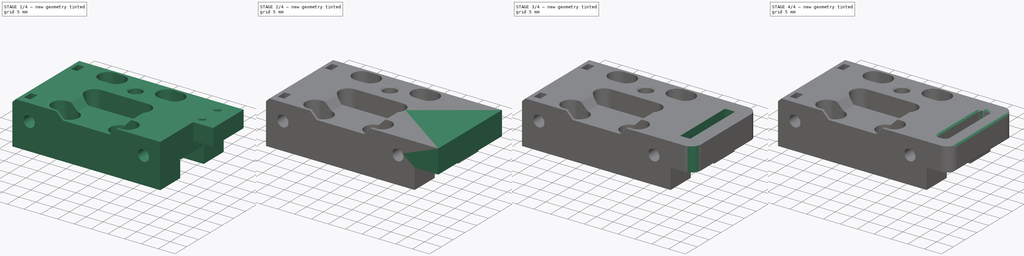
[diagram: build sequence overview — one tinted view per stage of 4, left to right]
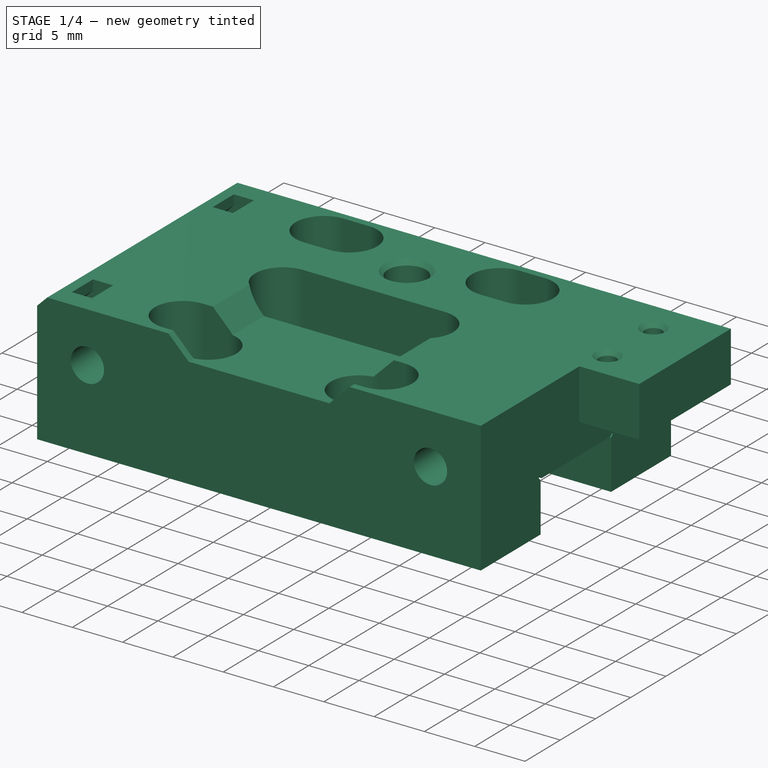
[diagram: stage 1 of 4 — iso view after this stage's code; geometry added in this stage tinted green]
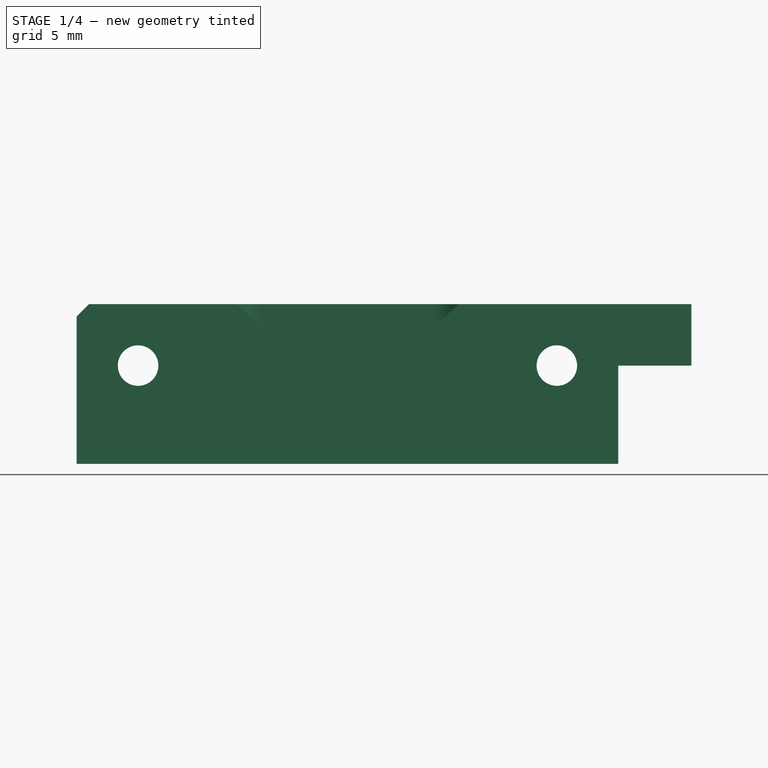
[diagram: stage 1 of 4 — front view after this stage's code; geometry added in this stage tinted green]
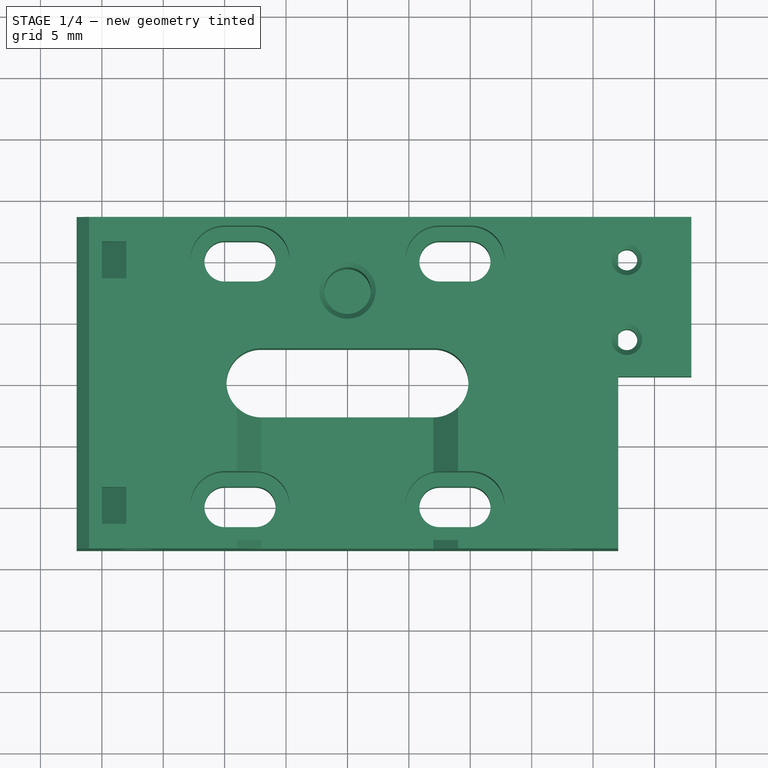
[diagram: stage 1 of 4 — top view after this stage's code; geometry added in this stage tinted green]
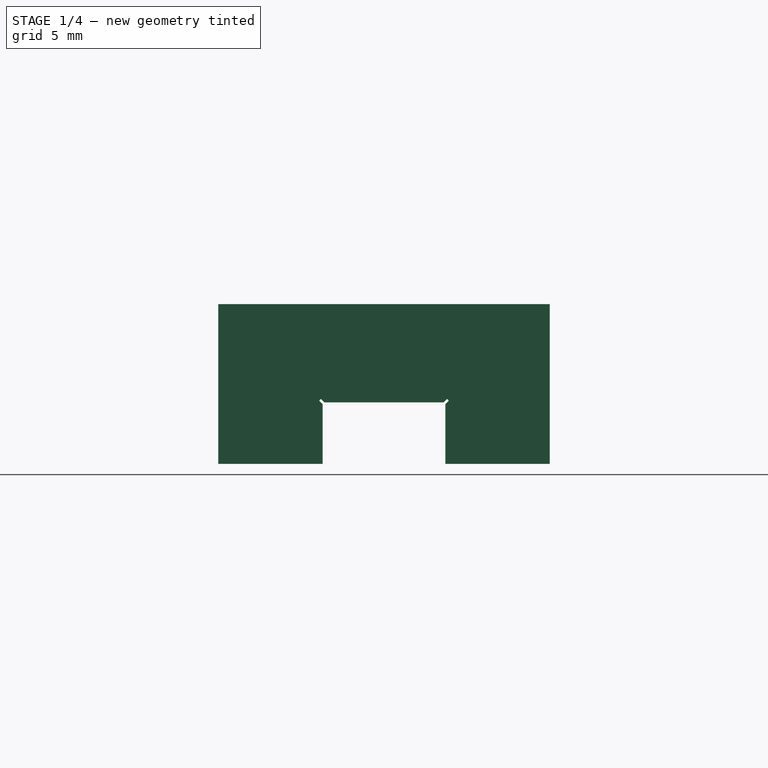
[diagram: stage 1 of 4 — right view after this stage's code; geometry added in this stage tinted green]
FCSTD DOCUMENT  (FreeCAD 0.19R24291 (Git))
Label: top-plate-2020-sensorless-endstop
License: All rights reserved
LicenseURL: http://en.wikipedia.org/wiki/All_rights_reserved
objects: Sketcher::SketchObject×6, PartDesign::Pocket×4, PartDesign::Pad×3, Part::Feature×2, PartDesign::Fillet×2, PartDesign::FeatureBase×1, PartDesign::Chamfer×1, PartDesign::Body×1
note: 30 computed .brp shape members not serialized (recipe doc carries the construction recipe); baked Part::Feature solids carry a one-line shape summary decoded from their .brp

FEATURE [Part::Feature] Body001002004  label="top-plate-with-endstop"
  Placement = pos=(0,0,0) rot=(0,0,1;3.14159rad)
  shape: bbox 50.05 x 27 x 15.5 mm, 97 faces (baked)
FEATURE [Part::Feature] Defeatured
  shape: bbox 50.05 x 27 x 15.5 mm, 96 faces (baked)
FEATURE [PartDesign::FeatureBase] BaseFeature
  BaseFeature = -> Defeatured
FEATURE [PartDesign::Pad] Pad
  BaseFeature = -> BaseFeature
  Direction = (1,1,1)
  Length = 2.5
  Length2 = 100
  Profile = -> BaseFeature [Face48,Face63,Face68,Face72]
  Type = 0
FEATURE [Sketcher::SketchObject] Sketch
  ExternalGeometry = -> [Pad]
  FullyConstrained = true
  MapMode = 5
  Placement = pos=(1.4e-15,-13.5,8e-16) rot=(1,0,0;1.5708rad)
  Support = -> [Pad]
  sketch-geometry (4):
    g0: LineSegment StartX=-22.05 StartY=33 StartZ=0 EndX=22.05 EndY=33 EndZ=0
    g1: LineSegment StartX=22.05 StartY=33 StartZ=0 EndX=22.05 EndY=30.5 EndZ=0
    g2: LineSegment StartX=22.05 StartY=30.5 StartZ=0 EndX=-22.05 EndY=30.5 EndZ=0
    g3: LineSegment StartX=-22.05 StartY=30.5 StartZ=0 EndX=-22.05 EndY=33 EndZ=0
  constraints (12):
    c: Coincident(g0,g1)
    c: Coincident(g1,g2)
    c: Coincident(g2,g3)
    c: Coincident(g3,g0)
    c: Horizontal(g0)
    c: Horizontal(g2)
    c: Vertical(g1)
    c: Vertical(g3)
    c: PointOnObject(g0,g-3)
    c: Vertical(g1,g-4)
    c: Horizontal(g-5,g1)
    c: DistanceY(g3,g3) = 2.5
FEATURE [PartDesign::Pocket] Pocket
  BaseFeature = -> Pad
  Length = 5
  Length2 = 100
  Profile = -> Sketch
  Type = 1
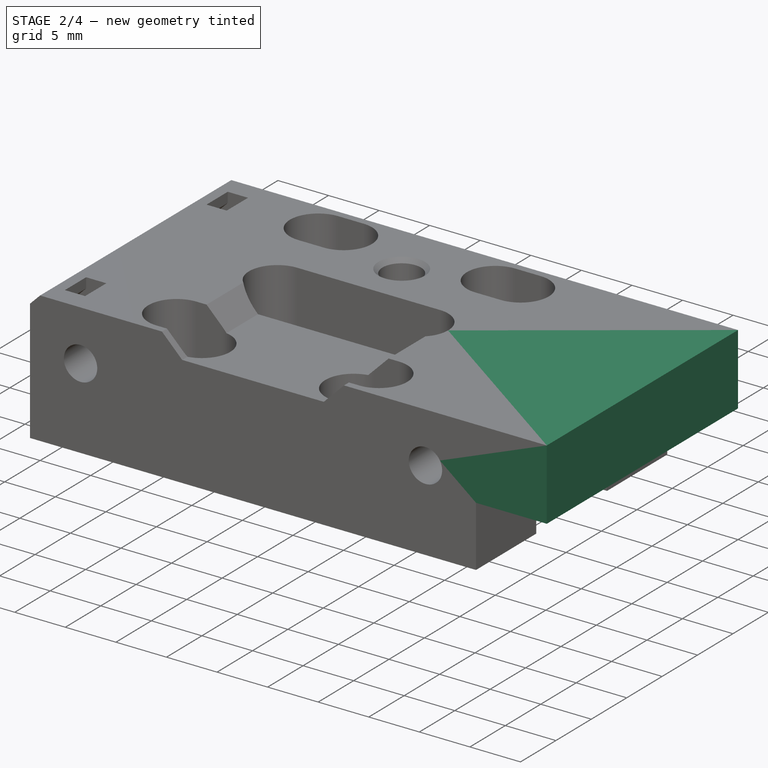
[diagram: stage 2 of 4 — iso view after this stage's code; geometry added in this stage tinted green]
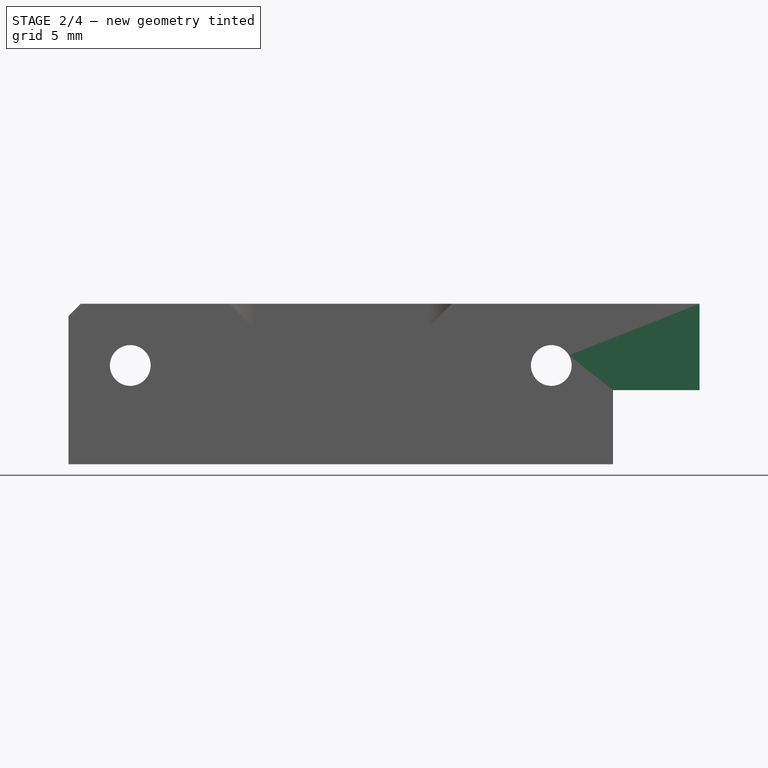
[diagram: stage 2 of 4 — front view after this stage's code; geometry added in this stage tinted green]
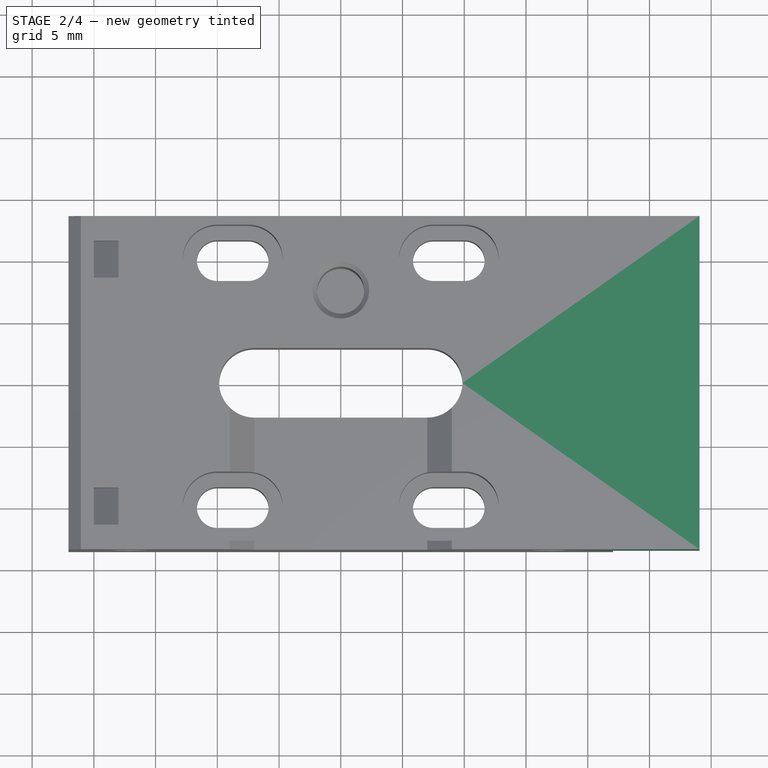
[diagram: stage 2 of 4 — top view after this stage's code; geometry added in this stage tinted green]
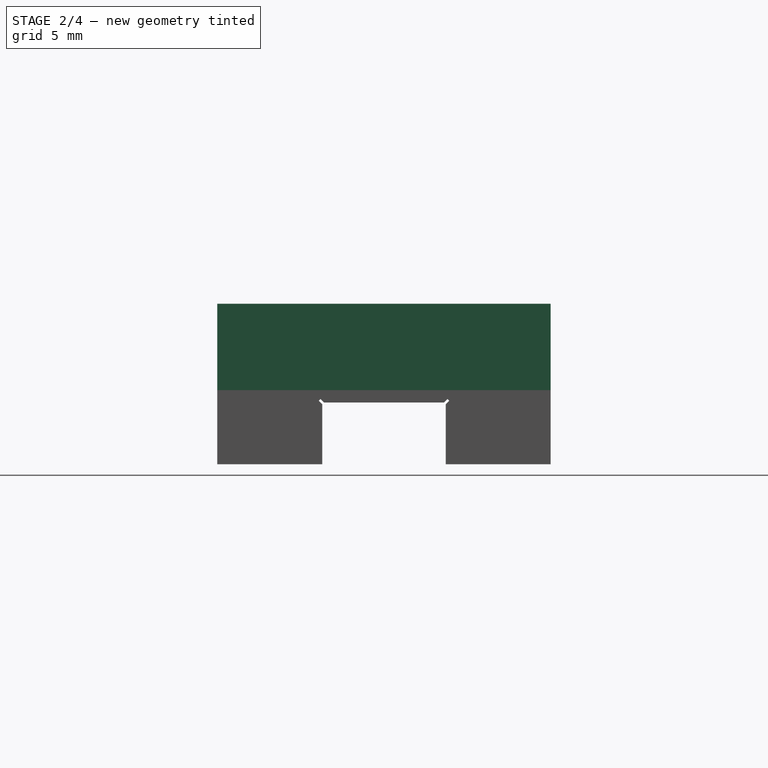
[diagram: stage 2 of 4 — right view after this stage's code; geometry added in this stage tinted green]
FEATURE [Sketcher::SketchObject] Sketch001
  ExternalGeometry = -> [Pocket]
  FullyConstrained = true
  MapMode = 5
  Placement = pos=(0,0,46) rot=(0,0,1;0rad)
  Support = -> [Pocket]
  sketch-geometry (4):
    g0: LineSegment StartX=22.05 StartY=0.5 StartZ=0 EndX=28 EndY=0.5 EndZ=0
    g1: LineSegment StartX=28 StartY=0.5 StartZ=0 EndX=28 EndY=13.5 EndZ=0
    g2: LineSegment StartX=28 StartY=13.5 StartZ=0 EndX=22.05 EndY=13.5 EndZ=0
    g3: LineSegment StartX=22.05 StartY=13.5 StartZ=0 EndX=22.05 EndY=0.5 EndZ=0
  constraints (10):
    c: Coincident(g0,g1)
    c: Coincident(g1,g2)
    c: Coincident(g2,g3)
    c: Coincident(g3,g0)
    c: Horizontal(g0)
    c: Horizontal(g2)
    c: Vertical(g1)
    c: Vertical(g3)
    c: Coincident(g0,g-3)
    c: Coincident(g1,g-4)
FEATURE [PartDesign::Pocket] Pocket001
  BaseFeature = -> Pocket
  Length = 5
  Length2 = 100
  Profile = -> Sketch001
  Type = 1
FEATURE [Sketcher::SketchObject] Sketch002
  ExternalGeometry = -> [Pocket001]
  FullyConstrained = true
  MapMode = 5
  Placement = pos=(0,0,46) rot=(0,0,1;0rad)
  Support = -> [Pocket001]
  sketch-geometry (4):
    g0: LineSegment StartX=22.05 StartY=13.5 StartZ=0 EndX=20.05 EndY=13.5 EndZ=0
    g1: LineSegment StartX=20.05 StartY=13.5 StartZ=0 EndX=20.05 EndY=-13.5 EndZ=0
    g2: LineSegment StartX=20.05 StartY=-13.5 StartZ=0 EndX=22.05 EndY=-13.5 EndZ=0
    g3: LineSegment StartX=22.05 StartY=-13.5 StartZ=0 EndX=22.05 EndY=13.5 EndZ=0
  constraints (11):
    c: Coincident(g0,g1)
    c: Coincident(g1,g2)
    c: Coincident(g2,g3)
    c: Coincident(g3,g0)
    c: Horizontal(g0)
    c: Horizontal(g2)
    c: Vertical(g1)
    c: Vertical(g3)
    c: Coincident(g0,g-3)
    c: PointOnObject(g1,g-4)
    c: DistanceX(g0,g0) = 2
FEATURE [PartDesign::Pad] Pad001
  BaseFeature = -> Pocket001
  Direction = (1,1,1)
  Length = 7
  Length2 = 100
  Profile = -> Sketch002
  Refine = true
  Reversed = true
  Type = 0
FEATURE [Sketcher::SketchObject] Sketch003
  ExternalGeometry = -> [Pad001]
  FullyConstrained = true
  MapMode = 5
  Placement = pos=(7.6e-15,-9.3e-15,46) rot=(0,0,1;0rad)
  Support = -> [Pad001]
  sketch-geometry (4):
    g0: LineSegment StartX=22.05 StartY=13.5 StartZ=0 EndX=29.05 EndY=13.5 EndZ=0
    g1: LineSegment StartX=29.05 StartY=13.5 StartZ=0 EndX=29.05 EndY=-13.5 EndZ=0
    g2: LineSegment StartX=29.05 StartY=-13.5 StartZ=0 EndX=22.05 EndY=-13.5 EndZ=0
    g3: LineSegment StartX=22.05 StartY=-13.5 StartZ=0 EndX=22.05 EndY=13.5 EndZ=0
  constraints (11):
    c: Coincident(g0,g1)
    c: Coincident(g1,g2)
    c: Coincident(g2,g3)
    c: Coincident(g3,g0)
    c: Horizontal(g0)
    c: Horizontal(g2)
    c: Vertical(g1)
    c: Vertical(g3)
    c: Coincident(g0,g-3)
    c: Horizontal(g2,g-4)
    c: DistanceX(g0,g0) = 7
FEATURE [PartDesign::Pad] Pad002
  BaseFeature = -> Pad001
  Direction = (1,1,1)
  Length = 7
  Length2 = 100
  Profile = -> Sketch003
  Refine = true
  Reversed = true
  Type = 0
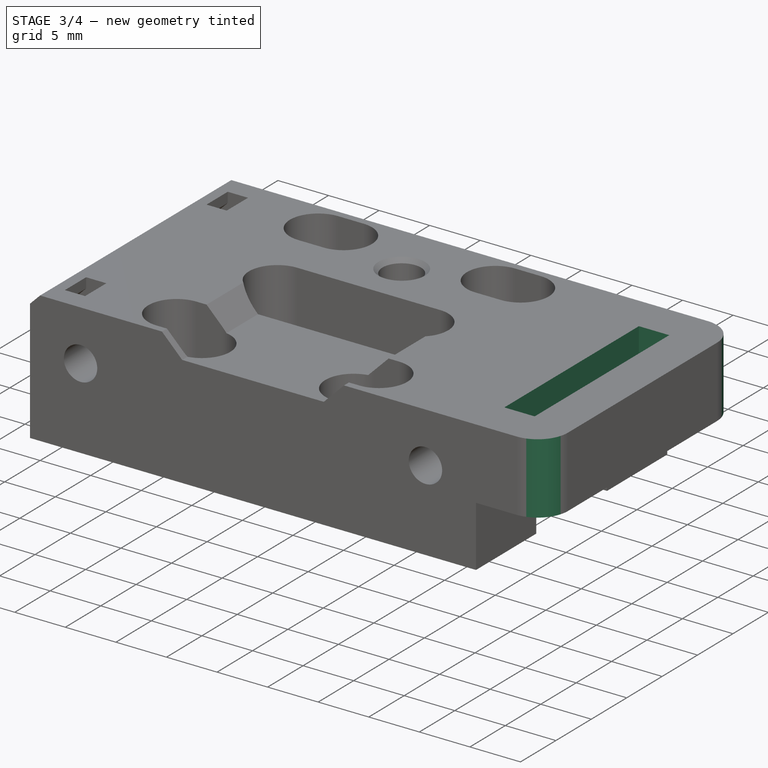
[diagram: stage 3 of 4 — iso view after this stage's code; geometry added in this stage tinted green]
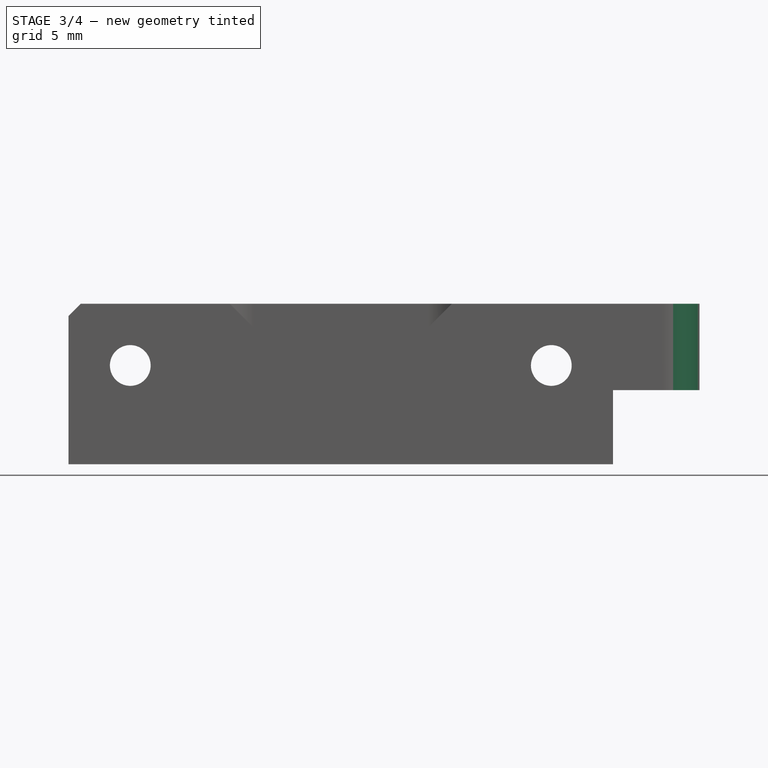
[diagram: stage 3 of 4 — front view after this stage's code; geometry added in this stage tinted green]
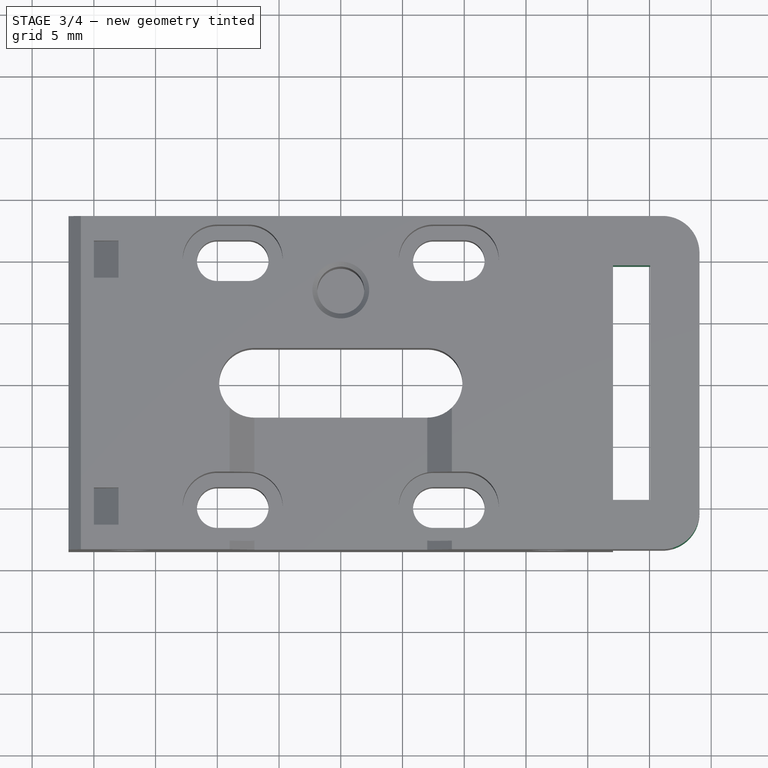
[diagram: stage 3 of 4 — top view after this stage's code; geometry added in this stage tinted green]
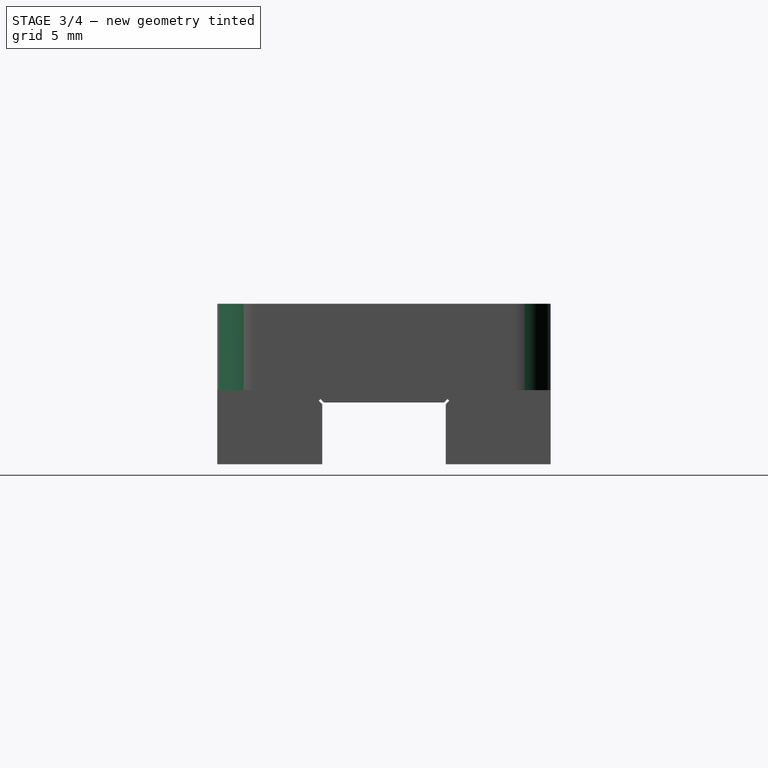
[diagram: stage 3 of 4 — right view after this stage's code; geometry added in this stage tinted green]
FEATURE [Sketcher::SketchObject] Sketch004
  ExternalGeometry = -> [Pad002]
  FullyConstrained = true
  MapMode = 5
  Placement = pos=(0,-1.03e-14,39) rot=(1,0,0;3.14159rad)
  Support = -> [Pad002]
  sketch-geometry (4):
    g0: LineSegment StartX=22.05 StartY=9.5 StartZ=0 EndX=25.05 EndY=9.5 EndZ=0
    g1: LineSegment StartX=25.05 StartY=9.5 StartZ=0 EndX=25.05 EndY=-9.5 EndZ=0
    g2: LineSegment StartX=25.05 StartY=-9.5 StartZ=0 EndX=22.05 EndY=-9.5 EndZ=0
    g3: LineSegment StartX=22.05 StartY=-9.5 StartZ=0 EndX=22.05 EndY=9.5 EndZ=0
  constraints (12):
    c: Coincident(g0,g1)
    c: Coincident(g1,g2)
    c: Coincident(g2,g3)
    c: Coincident(g3,g0)
    c: Horizontal(g0)
    c: Horizontal(g2)
    c: Vertical(g1)
    c: Vertical(g3)
    c: PointOnObject(g0,g-4)
    c: DistanceX(g0,g-6) = 4
    c: DistanceY(g0,g-4) = 4
    c: DistanceY(g-5,g2) = 4
FEATURE [PartDesign::Pocket] Pocket002
  BaseFeature = -> Pad002
  Length = 5
  Length2 = 100
  Profile = -> Sketch004
  Type = 1
FEATURE [PartDesign::Fillet] Fillet
  Base = -> Pocket002 [Edge64,Edge74]
  BaseFeature = -> Pocket002
  Radius = 3
  SupportTransform = false
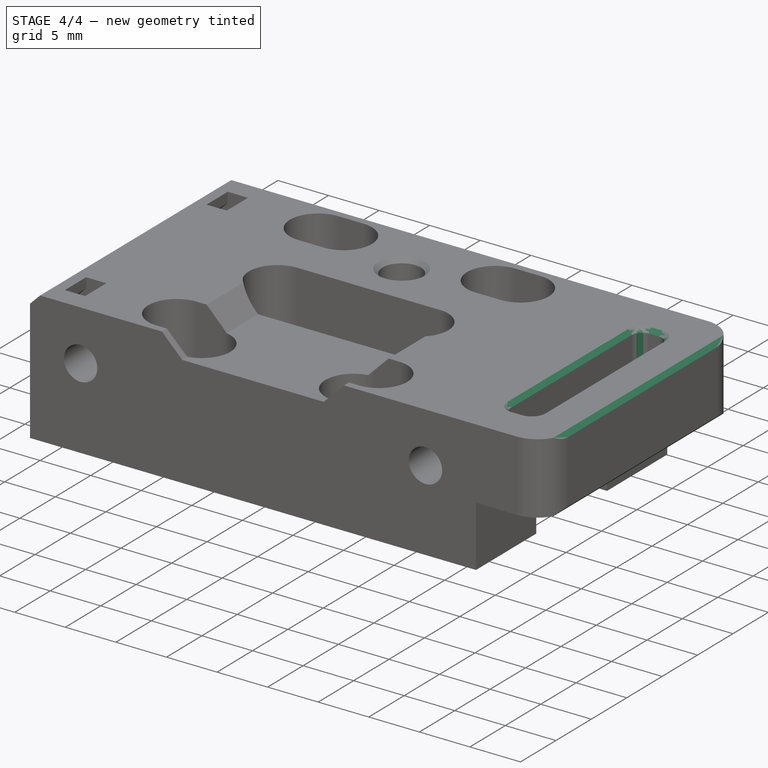
[diagram: stage 4 of 4 — iso view after this stage's code; geometry added in this stage tinted green]
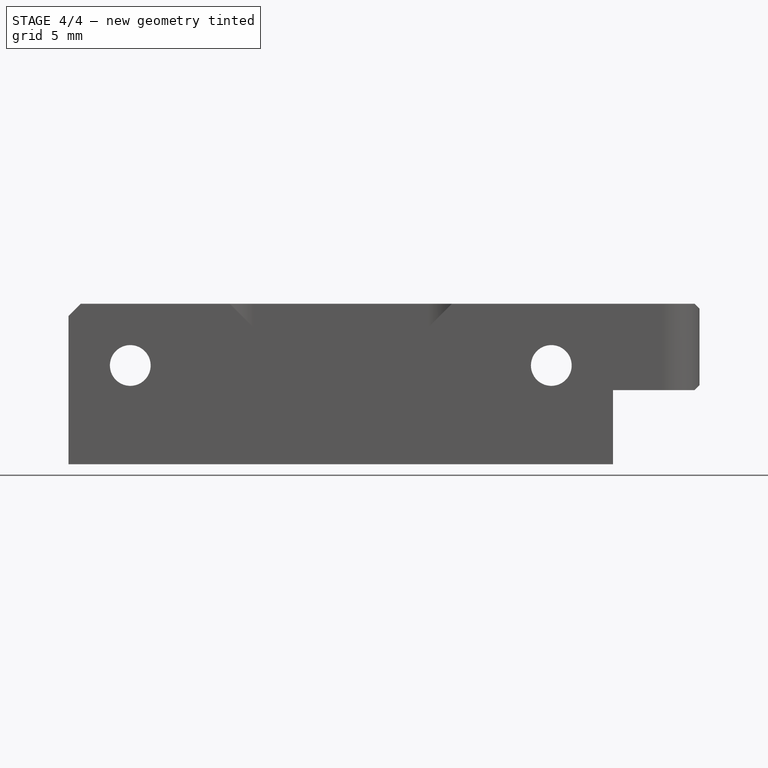
[diagram: stage 4 of 4 — front view after this stage's code; geometry added in this stage tinted green]
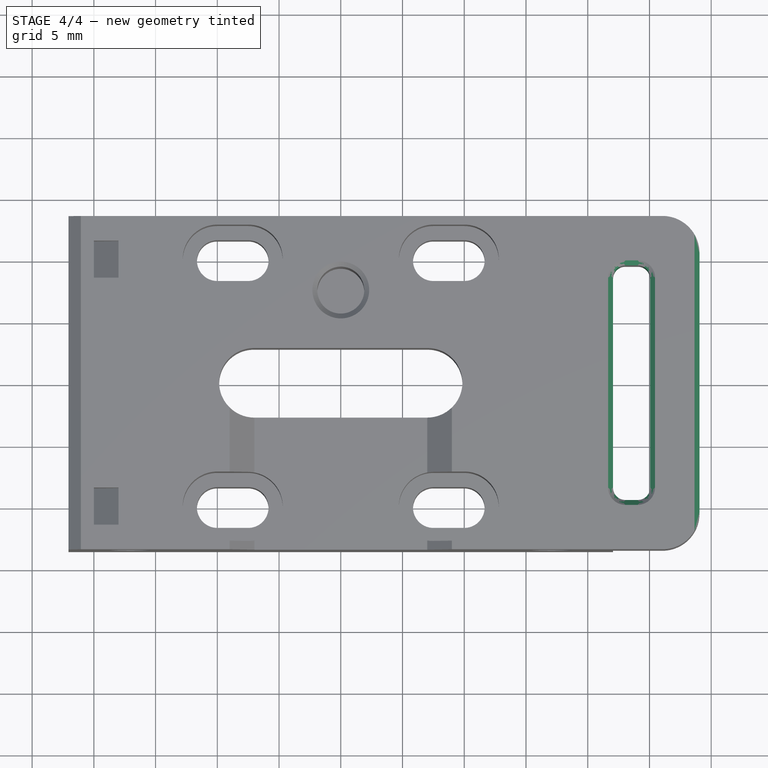
[diagram: stage 4 of 4 — top view after this stage's code; geometry added in this stage tinted green]
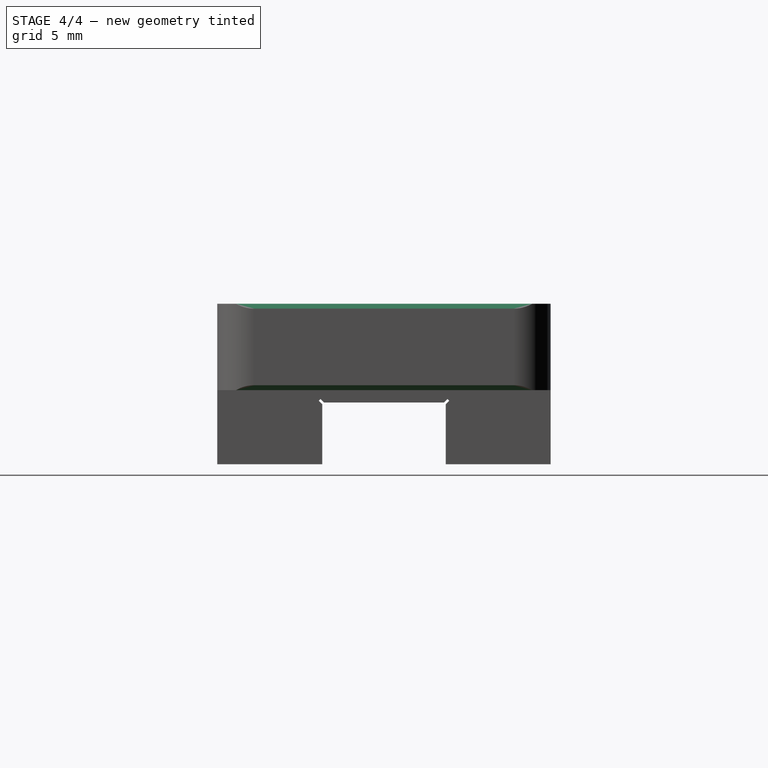
[diagram: stage 4 of 4 — right view after this stage's code; geometry added in this stage tinted green]
FEATURE [PartDesign::Fillet] Fillet001
  Base = -> Fillet [Edge124,Edge126,Edge122,Edge121]
  BaseFeature = -> Fillet
  Radius = 1
  SupportTransform = false
FEATURE [Sketcher::SketchObject] Sketch005
  ExternalGeometry = -> [Fillet001]
  FullyConstrained = true
  MapMode = 5
  Placement = pos=(9e-16,-13.5,-4.3e-15) rot=(1,0,0;1.5708rad)
  Support = -> [Fillet001]
  sketch-geometry (6):
    g0: LineSegment StartX=28.65 StartY=46 StartZ=0 EndX=29.05 EndY=45.6 EndZ=0
    g1: LineSegment StartX=29.05 StartY=45.6 StartZ=0 EndX=29.05 EndY=46 EndZ=0
    g2: LineSegment StartX=29.05 StartY=46 StartZ=0 EndX=28.65 EndY=46 EndZ=0
    g3: LineSegment StartX=28.65 StartY=39 StartZ=0 EndX=29.05 EndY=39.4 EndZ=0
    g4: LineSegment StartX=29.05 StartY=39.4 StartZ=0 EndX=29.05 EndY=39 EndZ=0
    g5: LineSegment StartX=29.05 StartY=39 StartZ=0 EndX=28.65 EndY=39 EndZ=0
  constraints (16):
    c: PointOnObject(g0,g-4)
    c: PointOnObject(g0,g-3)
    c: Coincident(g0,g1)
    c: Coincident(g1,g-4)
    c: Coincident(g1,g2)
    c: Coincident(g2,g0)
    c: PointOnObject(g3,g-5)
    c: PointOnObject(g3,g-3)
    c: Coincident(g3,g4)
    c: Coincident(g4,g-5)
    c: Coincident(g4,g5)
    c: Coincident(g5,g3)
    c: Equal(g5,g2)
    c: Equal(g2,g1)
    c: Equal(g1,g4)
    c: DistanceX(g2,g2) = 0.4
FEATURE [PartDesign::Pocket] Pocket003
  BaseFeature = -> Fillet001
  Length = 5
  Length2 = 100
  Profile = -> Sketch005
  Refine = true
  Type = 1
FEATURE [PartDesign::Chamfer] Chamfer
  Angle = 45
  Base = -> Pocket003 [Edge32]
  BaseFeature = -> Pocket003
  ChamferType = 0
  FlipDirection = false
  Size = 0.4
  Size2 = 1
  SupportTransform = false
FEATURE [PartDesign::Body] Body
  BaseFeature = -> Defeatured
  Group = -> [BaseFeature,Pad,Sketch,Pocket,Sketch001,Pocket001,Sketch002,Pad001,Sketch003,Pad002,Sketch004,Pocket002,Fillet,Fillet001,Sketch005,Pocket003,Chamfer]
  Origin = -> Origin
  Tip = -> Chamfer
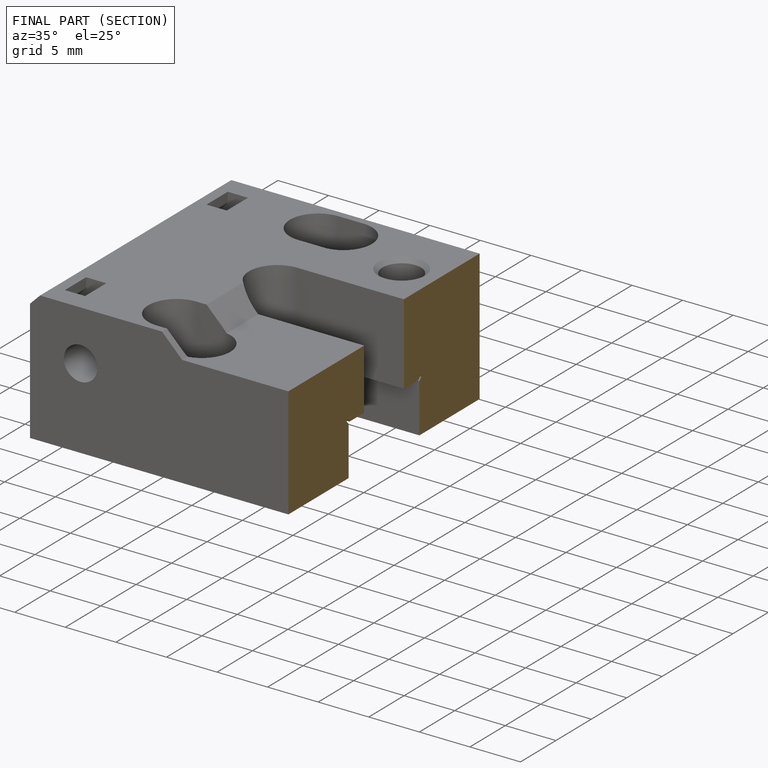
[diagram: finished part — half-section view (interior)]
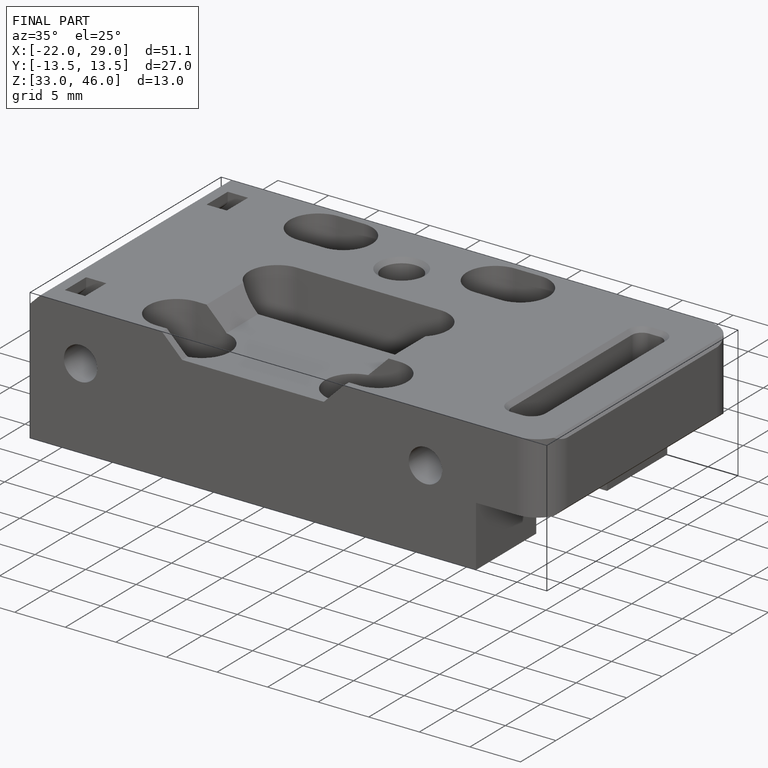
[diagram: finished part — iso view with bounding-box wireframe]
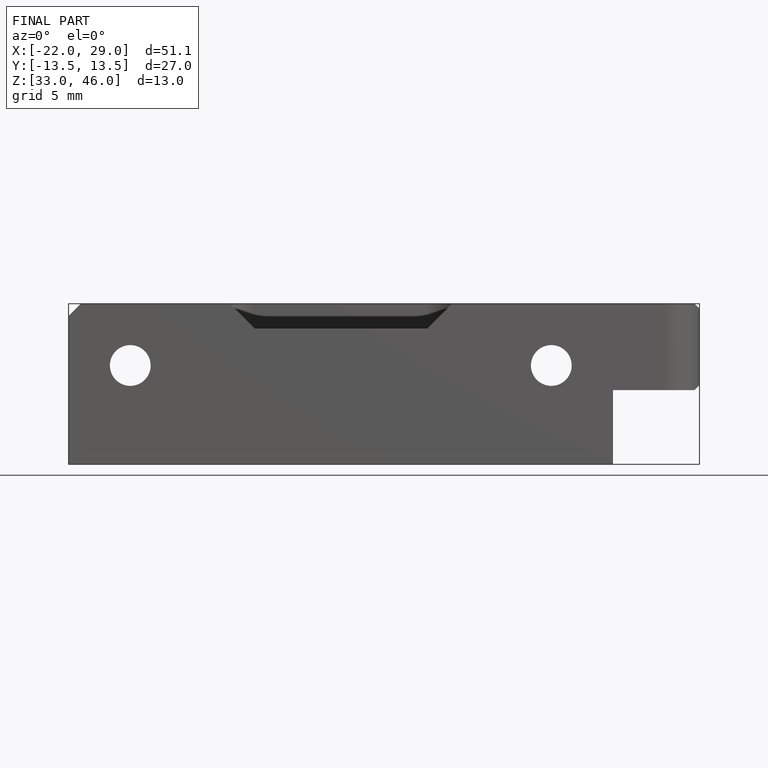
[diagram: finished part — front view with bounding-box wireframe]
